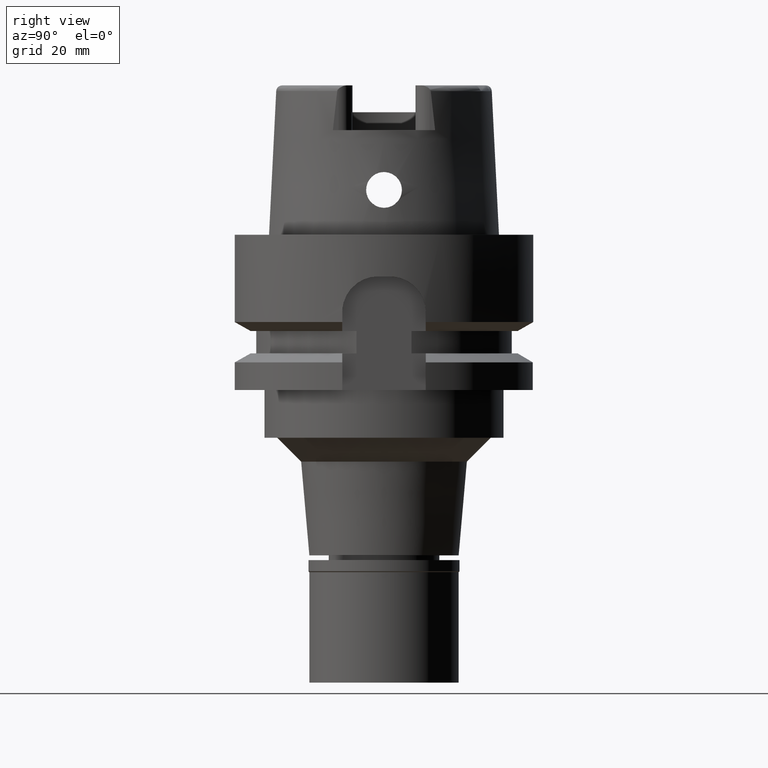
[diagram: clean part render]
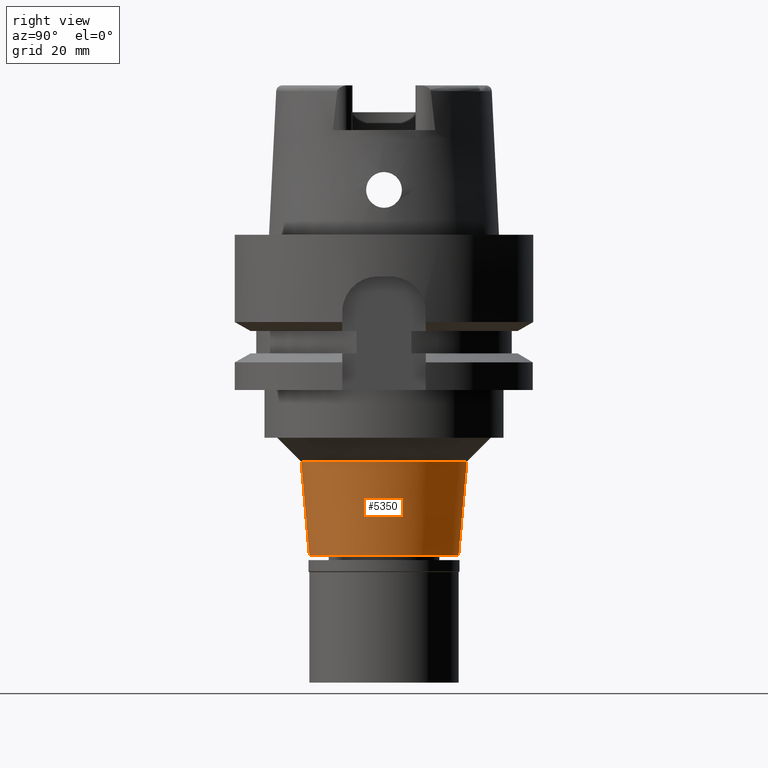
[diagram: same view with one face highlighted and labeled with its STEP entity id]
A machine part, right view. The second image highlights one B-rep face of the part: STEP entity #5350.
In plain terms, the highlighted conical surface has half-angle 5 deg.
Its self-contained STEP definition (entity closure, byte-faithful):
#1 = AXIS2_PLACEMENT_3D ( 'NONE', #5210, #3106, #622 ) ;
#53 = EDGE_CURVE ( 'NONE', #57, #4896, #3695, .T. ) ;
#57 = VERTEX_POINT ( 'NONE', #812 ) ;
#77 = ORIENTED_EDGE ( 'NONE', *, *, #2719, .F. ) ;
#154 = EDGE_CURVE ( 'NONE', #57, #1789, #3732, .T. ) ;
#622 = DIRECTION ( 'NONE',  ( 0.0000000000000000000, 1.000000000000000000, 0.0000000000000000000 ) ) ;
#775 = ORIENTED_EDGE ( 'NONE', *, *, #1535, .T. ) ;
#812 = CARTESIAN_POINT ( 'NONE',  ( 0.0000000000000000000, -13.87357201735999901, -38.00000000000000000 ) ) ;
#851 = CARTESIAN_POINT ( 'NONE',  ( 0.0000000000000000000, -12.50000000000000000, -53.69999999999999574 ) ) ;
#945 = EDGE_LOOP ( 'NONE', ( #2974, #2318, #775, #77 ) ) ;
#1064 = FACE_OUTER_BOUND ( 'NONE', #945, .T. ) ;
#1222 = AXIS2_PLACEMENT_3D ( 'NONE', #2864, #2498, #4127 ) ;
#1312 = LINE ( 'NONE', #4701, #4871 ) ;
#1373 = CARTESIAN_POINT ( 'NONE',  ( 0.0000000000000000000, 12.50000000000000000, -53.69999999999999574 ) ) ;
#1535 = EDGE_CURVE ( 'NONE', #1789, #3904, #2294, .T. ) ;
#1789 = VERTEX_POINT ( 'NONE', #851 ) ;
#1805 = CARTESIAN_POINT ( 'NONE',  ( 0.0000000000000000000, 13.87357201735999901, -38.00000000000000000 ) ) ;
#2094 = CARTESIAN_POINT ( 'NONE',  ( 0.0000000000000000000, 0.0000000000000000000, -38.00000000000000000 ) ) ;
#2294 = CIRCLE ( 'NONE', #1222, 12.50000000000000000 ) ;
#2318 = ORIENTED_EDGE ( 'NONE', *, *, #154, .T. ) ;
#2393 = CONICAL_SURFACE ( 'NONE', #1, 13.18678600868000039, 0.08726646259969973729 ) ;
#2480 = DIRECTION ( 'NONE',  ( 0.0000000000000000000, 0.08715574274774329222, -0.9961946980917381067 ) ) ;
#2498 = DIRECTION ( 'NONE',  ( 0.0000000000000000000, 0.0000000000000000000, 1.000000000000000000 ) ) ;
#2719 = EDGE_CURVE ( 'NONE', #4896, #3904, #1312, .T. ) ;
#2864 = CARTESIAN_POINT ( 'NONE',  ( 0.0000000000000000000, 0.0000000000000000000, -53.69999999999999574 ) ) ;
#2974 = ORIENTED_EDGE ( 'NONE', *, *, #53, .F. ) ;
#3106 = DIRECTION ( 'NONE',  ( 0.0000000000000000000, 0.0000000000000000000, 1.000000000000000000 ) ) ;
#3695 = CIRCLE ( 'NONE', #3879, 13.87357201735999901 ) ;
#3699 = VECTOR ( 'NONE', #2480, 1000.000000000000114 ) ;
#3732 = LINE ( 'NONE', #4582, #3699 ) ;
#3782 = DIRECTION ( 'NONE',  ( 0.0000000000000000000, -1.000000000000000000, 0.0000000000000000000 ) ) ;
#3879 = AXIS2_PLACEMENT_3D ( 'NONE', #2094, #4173, #3782 ) ;
#3904 = VERTEX_POINT ( 'NONE', #1373 ) ;
#4127 = DIRECTION ( 'NONE',  ( 0.0000000000000000000, -1.000000000000000000, 0.0000000000000000000 ) ) ;
#4173 = DIRECTION ( 'NONE',  ( 0.0000000000000000000, 0.0000000000000000000, 1.000000000000000000 ) ) ;
#4582 = CARTESIAN_POINT ( 'NONE',  ( 0.0000000000000000000, -13.87357201735999901, -38.00000000000000000 ) ) ;
#4701 = CARTESIAN_POINT ( 'NONE',  ( 0.0000000000000000000, 13.87357201735999901, -38.00000000000000000 ) ) ;
#4871 = VECTOR ( 'NONE', #5176, 1000.000000000000114 ) ;
#4896 = VERTEX_POINT ( 'NONE', #1805 ) ;
#5176 = DIRECTION ( 'NONE',  ( 0.0000000000000000000, -0.08715574274774329222, -0.9961946980917381067 ) ) ;
#5210 = CARTESIAN_POINT ( 'NONE',  ( 0.0000000000000000000, 0.0000000000000000000, -45.85000000000000142 ) ) ;
#5350 = ADVANCED_FACE ( 'NONE', ( #1064 ), #2393, .T. ) ;